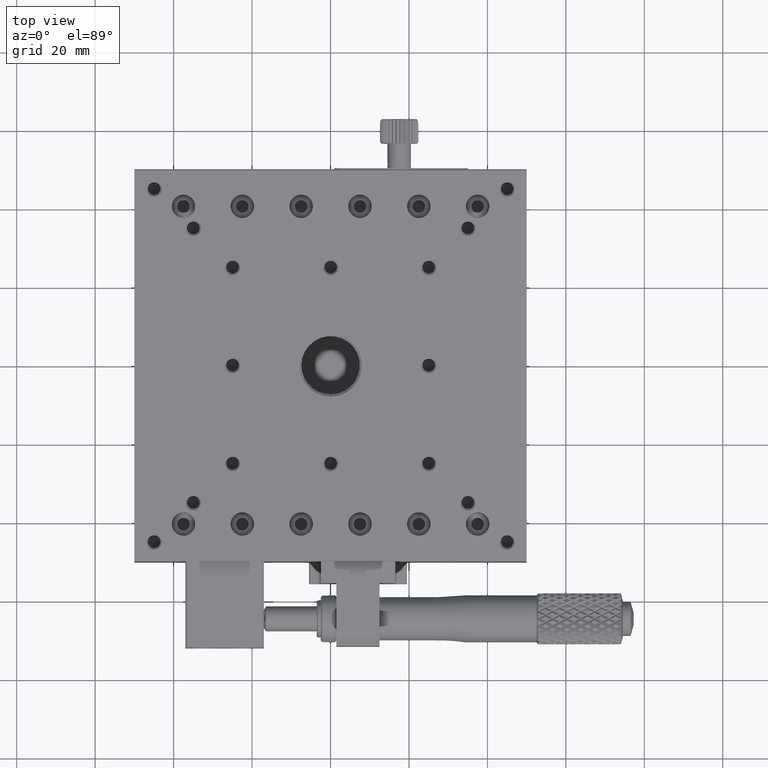
[diagram: clean part render]
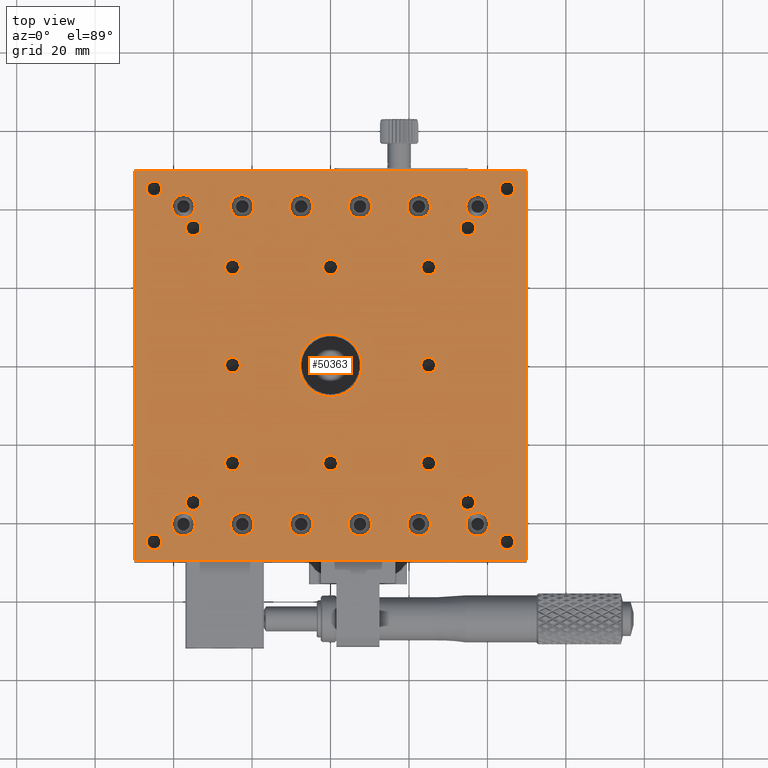
[diagram: same view with one face highlighted and labeled with its STEP entity id]
A machine part, top view. The second image highlights one B-rep face of the part: STEP entity #50363.
In plain terms, the highlighted planar face has unit normal (0, 0, 1).
Its self-contained STEP definition (entity closure, byte-faithful):
#138 = FACE_OUTER_BOUND ( 'NONE', #55230, .T. ) ;
#158 = ORIENTED_EDGE ( 'NONE', *, *, #47965, .T. ) ;
#298 = VERTEX_POINT ( 'NONE', #25252 ) ;
#645 = DIRECTION ( 'NONE',  ( 0.000000000000000000, 0.000000000000000000, -1.000000000000000000 ) ) ;
#951 = FACE_BOUND ( 'NONE', #22746, .T. ) ;
#1173 = DIRECTION ( 'NONE',  ( -1.000000000000000000, 0.000000000000000000, 0.000000000000000000 ) ) ;
#1351 = FACE_BOUND ( 'NONE', #33937, .T. ) ;
#1840 = EDGE_CURVE ( 'NONE', #40509, #40509, #58110, .T. ) ;
#2300 = CARTESIAN_POINT ( 'NONE',  ( 22.50000000000000355, 40.50000000000000000, 20.00000000000000000 ) ) ;
#2648 = CIRCLE ( 'NONE', #56085, 2.999999999999999112 ) ;
#3161 = VERTEX_POINT ( 'NONE', #47643 ) ;
#3465 = CARTESIAN_POINT ( 'NONE',  ( -47.00000000003683454, -45.00000000000000000, 20.00000000000000000 ) ) ;
#3509 = ORIENTED_EDGE ( 'NONE', *, *, #56589, .T. ) ;
#3549 = EDGE_CURVE ( 'NONE', #65436, #65436, #72535, .T. ) ;
#3638 = ORIENTED_EDGE ( 'NONE', *, *, #54955, .T. ) ;
#3855 = CARTESIAN_POINT ( 'NONE',  ( 4.500000000000000000, 40.50000000000000000, 20.00000000000000000 ) ) ;
#4041 = EDGE_LOOP ( 'NONE', ( #158 ) ) ;
#4313 = EDGE_LOOP ( 'NONE', ( #26048 ) ) ;
#4338 = VERTEX_POINT ( 'NONE', #78319 ) ;
#4940 = CIRCLE ( 'NONE', #67545, 2.000000000005004885 ) ;
#4987 = DIRECTION ( 'NONE',  ( -0.000000000000000000, -0.000000000000000000, -1.000000000000000000 ) ) ;
#6009 = DIRECTION ( 'NONE',  ( 0.000000000000000000, 0.000000000000000000, -1.000000000000000000 ) ) ;
#6127 = ORIENTED_EDGE ( 'NONE', *, *, #51556, .T. ) ;
#6254 = CIRCLE ( 'NONE', #8909, 2.000000000043654413 ) ;
#6442 = EDGE_CURVE ( 'NONE', #16455, #16455, #4940, .T. ) ;
#6642 = ORIENTED_EDGE ( 'NONE', *, *, #54458, .T. ) ;
#6644 = EDGE_CURVE ( 'NONE', #62362, #58034, #27372, .T. ) ;
#6684 = FACE_BOUND ( 'NONE', #21209, .T. ) ;
#7052 = EDGE_CURVE ( 'NONE', #39459, #40776, #19019, .T. ) ;
#7494 = FACE_BOUND ( 'NONE', #4313, .T. ) ;
#8128 = EDGE_CURVE ( 'NONE', #28692, #28692, #78809, .T. ) ;
#8168 = AXIS2_PLACEMENT_3D ( 'NONE', #55124, #29019, #61625 ) ;
#8376 = CARTESIAN_POINT ( 'NONE',  ( 40.50000000000000711, 40.50000000000000000, 20.00000000000000000 ) ) ;
#8476 = EDGE_CURVE ( 'NONE', #46278, #46278, #30465, .T. ) ;
#8482 = VERTEX_POINT ( 'NONE', #64413 ) ;
#8604 = DIRECTION ( 'NONE',  ( -1.000000000000000000, 0.000000000000000000, 0.000000000000000000 ) ) ;
#8799 = CIRCLE ( 'NONE', #29652, 2.000000000005004885 ) ;
#8909 = AXIS2_PLACEMENT_3D ( 'NONE', #67469, #56815, #42541 ) ;
#9109 = CARTESIAN_POINT ( 'NONE',  ( -40.50000000000000711, -40.49999999999999289, 20.00000000000000000 ) ) ;
#9531 = CARTESIAN_POINT ( 'NONE',  ( 0.000000000000000000, 0.000000000000000000, 20.00000000000000000 ) ) ;
#9783 = ORIENTED_EDGE ( 'NONE', *, *, #38152, .T. ) ;
#10974 = CIRCLE ( 'NONE', #52714, 2.000000000043654413 ) ;
#11170 = DIRECTION ( 'NONE',  ( -1.000000000000000000, 0.000000000000000000, 0.000000000000000000 ) ) ;
#11377 = ORIENTED_EDGE ( 'NONE', *, *, #7052, .T. ) ;
#11406 = CARTESIAN_POINT ( 'NONE',  ( -22.49999999999999289, -40.49999999999999289, 20.00000000000000000 ) ) ;
#11556 = ORIENTED_EDGE ( 'NONE', *, *, #23954, .T. ) ;
#12385 = AXIS2_PLACEMENT_3D ( 'NONE', #77914, #28476, #34983 ) ;
#12392 = DIRECTION ( 'NONE',  ( -1.000000000000000000, 0.000000000000000000, 0.000000000000000000 ) ) ;
#12677 = EDGE_LOOP ( 'NONE', ( #31024 ) ) ;
#12827 = EDGE_CURVE ( 'NONE', #36768, #36768, #25365, .T. ) ;
#12846 = FACE_BOUND ( 'NONE', #31286, .T. ) ;
#13250 = FACE_BOUND ( 'NONE', #64460, .T. ) ;
#13407 = EDGE_CURVE ( 'NONE', #30267, #30267, #65760, .T. ) ;
#13533 = CIRCLE ( 'NONE', #63066, 2.000000000036833647 ) ;
#13652 = CARTESIAN_POINT ( 'NONE',  ( -50.00000000000000000, 49.69999999999999574, 20.00000000000000000 ) ) ;
#14139 = VERTEX_POINT ( 'NONE', #69628 ) ;
#14177 = DIRECTION ( 'NONE',  ( -0.000000000000000000, 0.000000000000000000, -1.000000000000000000 ) ) ;
#14421 = EDGE_CURVE ( 'NONE', #80556, #80556, #43639, .T. ) ;
#14493 = ORIENTED_EDGE ( 'NONE', *, *, #71103, .T. ) ;
#14955 = AXIS2_PLACEMENT_3D ( 'NONE', #35201, #15679, #53612 ) ;
#15174 = VERTEX_POINT ( 'NONE', #27410 ) ;
#15558 = ORIENTED_EDGE ( 'NONE', *, *, #35464, .T. ) ;
#15679 = DIRECTION ( 'NONE',  ( -0.000000000000000000, -0.000000000000000000, -1.000000000000000000 ) ) ;
#16283 = EDGE_LOOP ( 'NONE', ( #3638 ) ) ;
#16455 = VERTEX_POINT ( 'NONE', #35197 ) ;
#16545 = DIRECTION ( 'NONE',  ( -1.000000000000000000, 0.000000000000000000, 0.000000000000000000 ) ) ;
#17102 = ORIENTED_EDGE ( 'NONE', *, *, #24367, .T. ) ;
#17367 = CARTESIAN_POINT ( 'NONE',  ( -50.00000000000000000, -49.70000000000000995, 20.00000000000000000 ) ) ;
#18404 = AXIS2_PLACEMENT_3D ( 'NONE', #23099, #43063, #54130 ) ;
#18976 = ORIENTED_EDGE ( 'NONE', *, *, #38147, .T. ) ;
#19019 = LINE ( 'NONE', #24748, #77622 ) ;
#19363 = FACE_BOUND ( 'NONE', #67192, .T. ) ;
#19515 = ORIENTED_EDGE ( 'NONE', *, *, #42082, .T. ) ;
#20171 = FACE_BOUND ( 'NONE', #41859, .T. ) ;
#20196 = ORIENTED_EDGE ( 'NONE', *, *, #47331, .T. ) ;
#20359 = AXIS2_PLACEMENT_3D ( 'NONE', #73948, #42882, #37551 ) ;
#20595 = DIRECTION ( 'NONE',  ( 0.000000000000000000, -1.000000000000000000, 0.000000000000000000 ) ) ;
#20757 = VERTEX_POINT ( 'NONE', #45246 ) ;
#20935 = DIRECTION ( 'NONE',  ( -0.000000000000000000, -0.000000000000000000, -1.000000000000000000 ) ) ;
#21054 = CIRCLE ( 'NONE', #26221, 8.000000000000000000 ) ;
#21069 = VERTEX_POINT ( 'NONE', #8376 ) ;
#21209 = EDGE_LOOP ( 'NONE', ( #25017 ) ) ;
#21277 = CARTESIAN_POINT ( 'NONE',  ( 25.00000000000000000, -24.99999999999999289, 20.00000000000000000 ) ) ;
#22053 = AXIS2_PLACEMENT_3D ( 'NONE', #29321, #28542, #66486 ) ;
#22159 = CIRCLE ( 'NONE', #78243, 2.000000000043654413 ) ;
#22270 = CARTESIAN_POINT ( 'NONE',  ( 22.99999999995634781, 25.00000000000000000, 20.00000000000000000 ) ) ;
#22274 = DIRECTION ( 'NONE',  ( -0.000000000000000000, -0.000000000000000000, -1.000000000000000000 ) ) ;
#22595 = DIRECTION ( 'NONE',  ( -1.000000000000000000, 0.000000000000000000, 0.000000000000000000 ) ) ;
#22645 = EDGE_LOOP ( 'NONE', ( #20196 ) ) ;
#22687 = ORIENTED_EDGE ( 'NONE', *, *, #6644, .T. ) ;
#22699 = LINE ( 'NONE', #17367, #74586 ) ;
#22706 = AXIS2_PLACEMENT_3D ( 'NONE', #38264, #26078, #63196 ) ;
#22746 = EDGE_LOOP ( 'NONE', ( #17102 ) ) ;
#22775 = EDGE_CURVE ( 'NONE', #53505, #53505, #2648, .T. ) ;
#23096 = DIRECTION ( 'NONE',  ( -1.000000000000000000, 0.000000000000000000, 0.000000000000000000 ) ) ;
#23099 = CARTESIAN_POINT ( 'NONE',  ( 35.00000000000000000, 35.00000000000000000, 20.00000000000000000 ) ) ;
#23570 = CIRCLE ( 'NONE', #18404, 2.000000000052751137 ) ;
#23721 = CARTESIAN_POINT ( 'NONE',  ( 7.500000000000000000, -40.49999999999999289, 20.00000000000000000 ) ) ;
#23954 = EDGE_CURVE ( 'NONE', #15174, #15174, #62201, .T. ) ;
#24246 = DIRECTION ( 'NONE',  ( -0.000000000000000000, -0.000000000000000000, -1.000000000000000000 ) ) ;
#24367 = EDGE_CURVE ( 'NONE', #28210, #28210, #77896, .T. ) ;
#24577 = CARTESIAN_POINT ( 'NONE',  ( -19.49999999999999289, 40.50000000000000000, 20.00000000000000000 ) ) ;
#24748 = CARTESIAN_POINT ( 'NONE',  ( -50.00000000000000000, 49.69999999999999574, 20.00000000000000000 ) ) ;
#24864 = DIRECTION ( 'NONE',  ( 1.000000000000000000, 0.000000000000000000, 0.000000000000000000 ) ) ;
#25017 = ORIENTED_EDGE ( 'NONE', *, *, #1840, .T. ) ;
#25082 = FACE_BOUND ( 'NONE', #60330, .T. ) ;
#25252 = CARTESIAN_POINT ( 'NONE',  ( -36.99999999993224264, -35.00000000000000000, 19.99999999994315658 ) ) ;
#25365 = CIRCLE ( 'NONE', #56665, 3.000000000000000000 ) ;
#25498 = FACE_BOUND ( 'NONE', #63060, .T. ) ;
#25634 = EDGE_LOOP ( 'NONE', ( #80806 ) ) ;
#25817 = EDGE_LOOP ( 'NONE', ( #15558 ) ) ;
#25906 = FACE_BOUND ( 'NONE', #42250, .T. ) ;
#25955 = AXIS2_PLACEMENT_3D ( 'NONE', #72106, #65984, #59441 ) ;
#26048 = ORIENTED_EDGE ( 'NONE', *, *, #67678, .T. ) ;
#26078 = DIRECTION ( 'NONE',  ( -0.000000000000000000, 0.000000000000000000, -1.000000000000000000 ) ) ;
#26080 = ORIENTED_EDGE ( 'NONE', *, *, #22775, .T. ) ;
#26221 = AXIS2_PLACEMENT_3D ( 'NONE', #9531, #65464, #20595 ) ;
#26236 = EDGE_LOOP ( 'NONE', ( #78989 ) ) ;
#26308 = FACE_BOUND ( 'NONE', #12677, .T. ) ;
#26468 = CARTESIAN_POINT ( 'NONE',  ( 42.99999999999499778, -45.00000000000000000, 19.99999999994315658 ) ) ;
#26708 = FACE_BOUND ( 'NONE', #25817, .T. ) ;
#27259 = DIRECTION ( 'NONE',  ( -1.000000000000000000, 0.000000000000000000, 0.000000000000000000 ) ) ;
#27372 = LINE ( 'NONE', #40366, #34977 ) ;
#27410 = CARTESIAN_POINT ( 'NONE',  ( 40.50000000000000711, -40.49999999999999289, 20.00000000000000000 ) ) ;
#27973 = AXIS2_PLACEMENT_3D ( 'NONE', #66705, #40982, #40182 ) ;
#28210 = VERTEX_POINT ( 'NONE', #65341 ) ;
#28476 = DIRECTION ( 'NONE',  ( 0.000000000000000000, 0.000000000000000000, -1.000000000000000000 ) ) ;
#28542 = DIRECTION ( 'NONE',  ( -0.000000000000000000, -0.000000000000000000, -1.000000000000000000 ) ) ;
#28692 = VERTEX_POINT ( 'NONE', #53608 ) ;
#29019 = DIRECTION ( 'NONE',  ( 0.000000000000000000, 0.000000000000000000, -1.000000000000000000 ) ) ;
#29321 = CARTESIAN_POINT ( 'NONE',  ( -35.00000000000000000, 35.00000000000000000, 19.99999999994315658 ) ) ;
#29418 = EDGE_LOOP ( 'NONE', ( #30115 ) ) ;
#29652 = AXIS2_PLACEMENT_3D ( 'NONE', #61367, #68711, #30337 ) ;
#30115 = ORIENTED_EDGE ( 'NONE', *, *, #13407, .T. ) ;
#30123 = EDGE_LOOP ( 'NONE', ( #3509 ) ) ;
#30267 = VERTEX_POINT ( 'NONE', #73579 ) ;
#30337 = DIRECTION ( 'NONE',  ( -1.000000000000000000, 0.000000000000000000, 0.000000000000000000 ) ) ;
#30465 = CIRCLE ( 'NONE', #50078, 3.000000000000002665 ) ;
#30766 = DIRECTION ( 'NONE',  ( -1.000000000000000000, 0.000000000000000000, 0.000000000000000000 ) ) ;
#31024 = ORIENTED_EDGE ( 'NONE', *, *, #64486, .T. ) ;
#31286 = EDGE_LOOP ( 'NONE', ( #52075 ) ) ;
#32621 = CARTESIAN_POINT ( 'NONE',  ( -45.00000000000000000, 45.00000000000000711, 20.00000000000000000 ) ) ;
#32722 = CIRCLE ( 'NONE', #74477, 1.999999999941340256 ) ;
#32914 = DIRECTION ( 'NONE',  ( 1.000000000000000000, 0.000000000000000000, 0.000000000000000000 ) ) ;
#32998 = CIRCLE ( 'NONE', #78700, 3.000000000000002665 ) ;
#33698 = VERTEX_POINT ( 'NONE', #57382 ) ;
#33937 = EDGE_LOOP ( 'NONE', ( #19515 ) ) ;
#34395 = CIRCLE ( 'NONE', #22706, 3.000000000000000000 ) ;
#34977 = VECTOR ( 'NONE', #47318, 1000.000000000000000 ) ;
#34983 = DIRECTION ( 'NONE',  ( 1.000000000000000000, 0.000000000000000000, 0.000000000000000000 ) ) ;
#35197 = CARTESIAN_POINT ( 'NONE',  ( 42.99999999999499778, 45.00000000000000711, 19.99999999994315658 ) ) ;
#35201 = CARTESIAN_POINT ( 'NONE',  ( 0.000000000000000000, 25.00000000000000000, 20.00000000000000000 ) ) ;
#35239 = ORIENTED_EDGE ( 'NONE', *, *, #42600, .T. ) ;
#35464 = EDGE_CURVE ( 'NONE', #298, #298, #67426, .T. ) ;
#35653 = DIRECTION ( 'NONE',  ( -0.000000000000000000, 0.000000000000000000, -1.000000000000000000 ) ) ;
#35679 = VERTEX_POINT ( 'NONE', #22270 ) ;
#36028 = ORIENTED_EDGE ( 'NONE', *, *, #58950, .T. ) ;
#36105 = DIRECTION ( 'NONE',  ( -1.000000000000000000, 0.000000000000000000, 0.000000000000000000 ) ) ;
#36768 = VERTEX_POINT ( 'NONE', #48671 ) ;
#36827 = AXIS2_PLACEMENT_3D ( 'NONE', #47988, #41435, #23096 ) ;
#37364 = VERTEX_POINT ( 'NONE', #56981 ) ;
#37551 = DIRECTION ( 'NONE',  ( -1.000000000000000000, 0.000000000000000000, 0.000000000000000000 ) ) ;
#37683 = CARTESIAN_POINT ( 'NONE',  ( 50.00000000000000000, -49.69999999999999574, 20.00000000000000355 ) ) ;
#38147 = EDGE_CURVE ( 'NONE', #39487, #39487, #8799, .T. ) ;
#38152 = EDGE_CURVE ( 'NONE', #38674, #38674, #78021, .T. ) ;
#38231 = DIRECTION ( 'NONE',  ( 1.000000000000000000, 0.000000000000000000, 0.000000000000000000 ) ) ;
#38264 = CARTESIAN_POINT ( 'NONE',  ( 7.500000000000000000, 40.50000000000000000, 20.00000000000000000 ) ) ;
#38674 = VERTEX_POINT ( 'NONE', #70544 ) ;
#38784 = DIRECTION ( 'NONE',  ( 1.000000000000000000, 0.000000000000000000, 0.000000000000000000 ) ) ;
#39459 = VERTEX_POINT ( 'NONE', #69792 ) ;
#39487 = VERTEX_POINT ( 'NONE', #26468 ) ;
#39872 = EDGE_LOOP ( 'NONE', ( #9783 ) ) ;
#40114 = CARTESIAN_POINT ( 'NONE',  ( -2.000000000020915714, -24.99999999999999289, 20.00000000000000000 ) ) ;
#40182 = DIRECTION ( 'NONE',  ( -1.000000000000000000, 0.000000000000000000, 0.000000000000000000 ) ) ;
#40366 = CARTESIAN_POINT ( 'NONE',  ( 50.00000000000000000, 49.69999999999999574, 20.00000000000000000 ) ) ;
#40509 = VERTEX_POINT ( 'NONE', #70761 ) ;
#40551 = ORIENTED_EDGE ( 'NONE', *, *, #12827, .T. ) ;
#40605 = EDGE_CURVE ( 'NONE', #63598, #63598, #6254, .T. ) ;
#40776 = VERTEX_POINT ( 'NONE', #77656 ) ;
#40982 = DIRECTION ( 'NONE',  ( -0.000000000000000000, -0.000000000000000000, -1.000000000000000000 ) ) ;
#41286 = ORIENTED_EDGE ( 'NONE', *, *, #74149, .T. ) ;
#41435 = DIRECTION ( 'NONE',  ( -0.000000000000000000, 0.000000000000000000, -1.000000000000000000 ) ) ;
#41859 = EDGE_LOOP ( 'NONE', ( #43777 ) ) ;
#42082 = EDGE_CURVE ( 'NONE', #8482, #8482, #79417, .T. ) ;
#42250 = EDGE_LOOP ( 'NONE', ( #11556 ) ) ;
#42541 = DIRECTION ( 'NONE',  ( -1.000000000000000000, 0.000000000000000000, 0.000000000000000000 ) ) ;
#42600 = EDGE_CURVE ( 'NONE', #20757, #20757, #44139, .T. ) ;
#42619 = AXIS2_PLACEMENT_3D ( 'NONE', #71649, #35653, #11170 ) ;
#42882 = DIRECTION ( 'NONE',  ( -0.000000000000000000, -0.000000000000000000, -1.000000000000000000 ) ) ;
#43050 = DIRECTION ( 'NONE',  ( -0.000000000000000000, -0.000000000000000000, -1.000000000000000000 ) ) ;
#43063 = DIRECTION ( 'NONE',  ( -0.000000000000000000, -0.000000000000000000, -1.000000000000000000 ) ) ;
#43486 = EDGE_LOOP ( 'NONE', ( #6642 ) ) ;
#43639 = CIRCLE ( 'NONE', #12385, 2.999999999999999112 ) ;
#43777 = ORIENTED_EDGE ( 'NONE', *, *, #6442, .T. ) ;
#43839 = FACE_BOUND ( 'NONE', #78686, .T. ) ;
#44139 = CIRCLE ( 'NONE', #22053, 1.999999999932236427 ) ;
#44249 = FACE_BOUND ( 'NONE', #4041, .T. ) ;
#44941 = DIRECTION ( 'NONE',  ( 0.000000000000000000, 0.000000000000000000, -1.000000000000000000 ) ) ;
#45008 = EDGE_CURVE ( 'NONE', #47245, #47245, #22159, .T. ) ;
#45246 = CARTESIAN_POINT ( 'NONE',  ( -36.99999999993224264, 35.00000000000000000, 19.99999999994315658 ) ) ;
#45342 = AXIS2_PLACEMENT_3D ( 'NONE', #80218, #24246, #12392 ) ;
#45365 = DIRECTION ( 'NONE',  ( -0.000000000000000000, -0.000000000000000000, -1.000000000000000000 ) ) ;
#45621 = CARTESIAN_POINT ( 'NONE',  ( -37.50000000000000711, -40.49999999999999289, 20.00000000000000000 ) ) ;
#45819 = ORIENTED_EDGE ( 'NONE', *, *, #8476, .T. ) ;
#46037 = CIRCLE ( 'NONE', #51196, 2.999999999999999112 ) ;
#46278 = VERTEX_POINT ( 'NONE', #9109 ) ;
#47084 = DIRECTION ( 'NONE',  ( -1.000000000000000000, -0.000000000000000000, 0.000000000000000000 ) ) ;
#47245 = VERTEX_POINT ( 'NONE', #78713 ) ;
#47318 = DIRECTION ( 'NONE',  ( -0.000000000000000000, 1.000000000000000000, -0.000000000000000000 ) ) ;
#47331 = EDGE_CURVE ( 'NONE', #59490, #59490, #21054, .T. ) ;
#47432 = EDGE_CURVE ( 'NONE', #3161, #3161, #32722, .T. ) ;
#47643 = CARTESIAN_POINT ( 'NONE',  ( -26.99999999994133404, 0.000000000000000000, 19.99999999994315658 ) ) ;
#47881 = CARTESIAN_POINT ( 'NONE',  ( -24.99999999999999289, 0.000000000000000000, 19.99999999994315658 ) ) ;
#47965 = EDGE_CURVE ( 'NONE', #4338, #4338, #23570, .T. ) ;
#47988 = CARTESIAN_POINT ( 'NONE',  ( -37.50000000000000711, 40.50000000000000000, 20.00000000000000000 ) ) ;
#48446 = CARTESIAN_POINT ( 'NONE',  ( 0.000000000000000000, -8.000000000000000000, 20.00000000000000000 ) ) ;
#48563 = DIRECTION ( 'NONE',  ( 0.000000000000000000, 0.000000000000000000, -1.000000000000000000 ) ) ;
#48625 = DIRECTION ( 'NONE',  ( -1.000000000000000000, 0.000000000000000000, 0.000000000000000000 ) ) ;
#48671 = CARTESIAN_POINT ( 'NONE',  ( 4.500000000000000000, -40.49999999999999289, 20.00000000000000000 ) ) ;
#49982 = FACE_BOUND ( 'NONE', #73096, .T. ) ;
#50078 = AXIS2_PLACEMENT_3D ( 'NONE', #45621, #70506, #27259 ) ;
#50363 = ADVANCED_FACE ( 'NONE', ( #138, #20171, #7494, #56495, #75313, #44249, #26708, #69555, #76541, #64232, #25082, #76126, #49982, #74913, #56908, #43839, #1351, #69148, #68750, #19363, #26308, #51194, #12846, #62625, #6684, #25498, #13250, #63026, #951, #25906 ), #50783, .T. ) ;
#50783 = PLANE ( 'NONE',  #54935 ) ;
#51194 = FACE_BOUND ( 'NONE', #16283, .T. ) ;
#51196 = AXIS2_PLACEMENT_3D ( 'NONE', #11406, #48563, #24864 ) ;
#51556 = EDGE_CURVE ( 'NONE', #40776, #62362, #22699, .T. ) ;
#52075 = ORIENTED_EDGE ( 'NONE', *, *, #14421, .T. ) ;
#52346 = DIRECTION ( 'NONE',  ( -1.000000000000000000, 0.000000000000000000, 0.000000000000000000 ) ) ;
#52378 = LINE ( 'NONE', #70752, #65925 ) ;
#52714 = AXIS2_PLACEMENT_3D ( 'NONE', #78233, #22274, #16545 ) ;
#52804 = DIRECTION ( 'NONE',  ( 0.000000000000000000, 0.000000000000000000, 1.000000000000000000 ) ) ;
#53505 = VERTEX_POINT ( 'NONE', #78442 ) ;
#53608 = CARTESIAN_POINT ( 'NONE',  ( -47.00000000003683454, 45.00000000000000711, 20.00000000000000000 ) ) ;
#53612 = DIRECTION ( 'NONE',  ( -1.000000000000000000, 0.000000000000000000, 0.000000000000000000 ) ) ;
#53942 = EDGE_LOOP ( 'NONE', ( #35239 ) ) ;
#54130 = DIRECTION ( 'NONE',  ( -1.000000000000000000, 0.000000000000000000, 0.000000000000000000 ) ) ;
#54458 = EDGE_CURVE ( 'NONE', #37364, #37364, #59071, .T. ) ;
#54935 = AXIS2_PLACEMENT_3D ( 'NONE', #13652, #52804, #47084 ) ;
#54955 = EDGE_CURVE ( 'NONE', #33698, #33698, #72072, .T. ) ;
#55124 = CARTESIAN_POINT ( 'NONE',  ( -7.500000000000000000, 40.50000000000000000, 20.00000000000000000 ) ) ;
#55230 = EDGE_LOOP ( 'NONE', ( #11377, #6127, #22687, #41286 ) ) ;
#55363 = CIRCLE ( 'NONE', #14955, 2.000000000020915714 ) ;
#56085 = AXIS2_PLACEMENT_3D ( 'NONE', #2300, #14177, #63948 ) ;
#56495 = FACE_BOUND ( 'NONE', #62458, .T. ) ;
#56589 = EDGE_CURVE ( 'NONE', #21069, #21069, #32998, .T. ) ;
#56604 = CARTESIAN_POINT ( 'NONE',  ( -7.500000000000000000, -40.49999999999999289, 20.00000000000000000 ) ) ;
#56665 = AXIS2_PLACEMENT_3D ( 'NONE', #23721, #74344, #48625 ) ;
#56815 = DIRECTION ( 'NONE',  ( -0.000000000000000000, -0.000000000000000000, -1.000000000000000000 ) ) ;
#56908 = FACE_BOUND ( 'NONE', #57369, .T. ) ;
#56981 = CARTESIAN_POINT ( 'NONE',  ( -4.500000000000000000, 40.50000000000000000, 20.00000000000000000 ) ) ;
#57369 = EDGE_LOOP ( 'NONE', ( #14493 ) ) ;
#57382 = CARTESIAN_POINT ( 'NONE',  ( -40.50000000000000711, 40.50000000000000000, 20.00000000000000000 ) ) ;
#57656 = EDGE_LOOP ( 'NONE', ( #40551 ) ) ;
#57872 = CARTESIAN_POINT ( 'NONE',  ( 22.99999999995634781, 0.000000000000000000, 20.00000000000000000 ) ) ;
#58034 = VERTEX_POINT ( 'NONE', #77305 ) ;
#58110 = CIRCLE ( 'NONE', #78979, 3.000000000000000000 ) ;
#58788 = CARTESIAN_POINT ( 'NONE',  ( 37.50000000000000711, 40.50000000000000000, 20.00000000000000000 ) ) ;
#58950 = EDGE_CURVE ( 'NONE', #14139, #14139, #46037, .T. ) ;
#59071 = CIRCLE ( 'NONE', #8168, 3.000000000000000000 ) ;
#59441 = DIRECTION ( 'NONE',  ( -1.000000000000000000, 0.000000000000000000, 0.000000000000000000 ) ) ;
#59490 = VERTEX_POINT ( 'NONE', #48446 ) ;
#60330 = EDGE_LOOP ( 'NONE', ( #68586 ) ) ;
#61367 = CARTESIAN_POINT ( 'NONE',  ( 45.00000000000000711, -45.00000000000000000, 19.99999999994315658 ) ) ;
#61381 = CARTESIAN_POINT ( 'NONE',  ( -2.000000000020915714, 25.00000000000000000, 20.00000000000000000 ) ) ;
#61625 = DIRECTION ( 'NONE',  ( 1.000000000000000000, 0.000000000000000000, 0.000000000000000000 ) ) ;
#62201 = CIRCLE ( 'NONE', #76615, 3.000000000000002665 ) ;
#62362 = VERTEX_POINT ( 'NONE', #37683 ) ;
#62458 = EDGE_LOOP ( 'NONE', ( #75801 ) ) ;
#62625 = FACE_BOUND ( 'NONE', #43486, .T. ) ;
#63026 = FACE_BOUND ( 'NONE', #57656, .T. ) ;
#63060 = EDGE_LOOP ( 'NONE', ( #36028 ) ) ;
#63066 = AXIS2_PLACEMENT_3D ( 'NONE', #67131, #79030, #30766 ) ;
#63196 = DIRECTION ( 'NONE',  ( -1.000000000000000000, 0.000000000000000000, 0.000000000000000000 ) ) ;
#63374 = CARTESIAN_POINT ( 'NONE',  ( 45.00000000000000711, 45.00000000000000711, 19.99999999994315658 ) ) ;
#63598 = VERTEX_POINT ( 'NONE', #57872 ) ;
#63948 = DIRECTION ( 'NONE',  ( -1.000000000000000000, 0.000000000000000000, 0.000000000000000000 ) ) ;
#64232 = FACE_BOUND ( 'NONE', #25634, .T. ) ;
#64413 = CARTESIAN_POINT ( 'NONE',  ( -26.99999999994133404, 25.00000000000000000, 19.99999999994315658 ) ) ;
#64420 = AXIS2_PLACEMENT_3D ( 'NONE', #32621, #69367, #1173 ) ;
#64460 = EDGE_LOOP ( 'NONE', ( #45819 ) ) ;
#64486 = EDGE_CURVE ( 'NONE', #79426, #79426, #34395, .T. ) ;
#64748 = EDGE_CURVE ( 'NONE', #35679, #35679, #10974, .T. ) ;
#65341 = CARTESIAN_POINT ( 'NONE',  ( 19.50000000000000355, -40.49999999999999289, 20.00000000000000000 ) ) ;
#65436 = VERTEX_POINT ( 'NONE', #40114 ) ;
#65464 = DIRECTION ( 'NONE',  ( -0.000000000000000000, 3.009265538105056020E-33, -1.000000000000000000 ) ) ;
#65574 = DIRECTION ( 'NONE',  ( 1.000000000000000000, 0.000000000000000000, -0.000000000000000000 ) ) ;
#65760 = CIRCLE ( 'NONE', #27973, 1.999999999941340256 ) ;
#65925 = VECTOR ( 'NONE', #71166, 1000.000000000000000 ) ;
#65984 = DIRECTION ( 'NONE',  ( -0.000000000000000000, -0.000000000000000000, -1.000000000000000000 ) ) ;
#66486 = DIRECTION ( 'NONE',  ( -1.000000000000000000, 0.000000000000000000, 0.000000000000000000 ) ) ;
#66705 = CARTESIAN_POINT ( 'NONE',  ( -24.99999999999999289, -24.99999999999999289, 19.99999999994315658 ) ) ;
#67131 = CARTESIAN_POINT ( 'NONE',  ( -45.00000000000000000, -45.00000000000000000, 20.00000000000000000 ) ) ;
#67192 = EDGE_LOOP ( 'NONE', ( #26080 ) ) ;
#67426 = CIRCLE ( 'NONE', #80454, 1.999999999932236427 ) ;
#67469 = CARTESIAN_POINT ( 'NONE',  ( 25.00000000000000000, 0.000000000000000000, 20.00000000000000000 ) ) ;
#67545 = AXIS2_PLACEMENT_3D ( 'NONE', #63374, #20935, #52346 ) ;
#67678 = EDGE_CURVE ( 'NONE', #79026, #79026, #13533, .T. ) ;
#68586 = ORIENTED_EDGE ( 'NONE', *, *, #40605, .T. ) ;
#68711 = DIRECTION ( 'NONE',  ( -0.000000000000000000, -0.000000000000000000, -1.000000000000000000 ) ) ;
#68750 = FACE_BOUND ( 'NONE', #30123, .T. ) ;
#68805 = DIRECTION ( 'NONE',  ( 0.000000000000000000, -1.000000000000000000, 0.000000000000000000 ) ) ;
#69148 = FACE_BOUND ( 'NONE', #22645, .T. ) ;
#69281 = CARTESIAN_POINT ( 'NONE',  ( 37.50000000000000711, -40.49999999999999289, 20.00000000000000000 ) ) ;
#69367 = DIRECTION ( 'NONE',  ( -0.000000000000000000, -0.000000000000000000, -1.000000000000000000 ) ) ;
#69555 = FACE_BOUND ( 'NONE', #53942, .T. ) ;
#69628 = CARTESIAN_POINT ( 'NONE',  ( -19.49999999999999289, -40.49999999999999289, 20.00000000000000000 ) ) ;
#69792 = CARTESIAN_POINT ( 'NONE',  ( -50.00000000000000000, 49.69999999999999574, 20.00000000000000000 ) ) ;
#70506 = DIRECTION ( 'NONE',  ( -0.000000000000000000, 0.000000000000000000, -1.000000000000000000 ) ) ;
#70544 = CARTESIAN_POINT ( 'NONE',  ( 32.99999999994724931, -35.00000000000000000, 20.00000000000000000 ) ) ;
#70752 = CARTESIAN_POINT ( 'NONE',  ( -50.00000000000000000, 49.69999999999999574, 20.00000000000000000 ) ) ;
#70761 = CARTESIAN_POINT ( 'NONE',  ( -4.500000000000000000, -40.49999999999999289, 20.00000000000000000 ) ) ;
#71103 = EDGE_CURVE ( 'NONE', #74091, #74091, #55363, .T. ) ;
#71166 = DIRECTION ( 'NONE',  ( -1.000000000000000000, -0.000000000000000000, 0.000000000000000000 ) ) ;
#71649 = CARTESIAN_POINT ( 'NONE',  ( 22.50000000000000355, -40.49999999999999289, 20.00000000000000000 ) ) ;
#72072 = CIRCLE ( 'NONE', #36827, 3.000000000000002665 ) ;
#72106 = CARTESIAN_POINT ( 'NONE',  ( -24.99999999999999289, 25.00000000000000000, 19.99999999994315658 ) ) ;
#72241 = ORIENTED_EDGE ( 'NONE', *, *, #3549, .T. ) ;
#72535 = CIRCLE ( 'NONE', #20359, 2.000000000020915714 ) ;
#73096 = EDGE_LOOP ( 'NONE', ( #77811 ) ) ;
#73579 = CARTESIAN_POINT ( 'NONE',  ( -26.99999999994133404, -24.99999999999999289, 19.99999999994315658 ) ) ;
#73948 = CARTESIAN_POINT ( 'NONE',  ( 0.000000000000000000, -24.99999999999999289, 20.00000000000000000 ) ) ;
#74091 = VERTEX_POINT ( 'NONE', #61381 ) ;
#74149 = EDGE_CURVE ( 'NONE', #58034, #39459, #52378, .T. ) ;
#74344 = DIRECTION ( 'NONE',  ( -0.000000000000000000, 0.000000000000000000, -1.000000000000000000 ) ) ;
#74477 = AXIS2_PLACEMENT_3D ( 'NONE', #47881, #4987, #22595 ) ;
#74586 = VECTOR ( 'NONE', #65574, 1000.000000000000000 ) ;
#74913 = FACE_BOUND ( 'NONE', #26236, .T. ) ;
#75313 = FACE_BOUND ( 'NONE', #75849, .T. ) ;
#75801 = ORIENTED_EDGE ( 'NONE', *, *, #8128, .T. ) ;
#75849 = EDGE_LOOP ( 'NONE', ( #18976 ) ) ;
#76126 = FACE_BOUND ( 'NONE', #29418, .T. ) ;
#76541 = FACE_BOUND ( 'NONE', #39872, .T. ) ;
#76615 = AXIS2_PLACEMENT_3D ( 'NONE', #69281, #6009, #38231 ) ;
#77305 = CARTESIAN_POINT ( 'NONE',  ( 50.00000000000002132, 49.69999999999999574, 20.00000000000000000 ) ) ;
#77622 = VECTOR ( 'NONE', #68805, 1000.000000000000000 ) ;
#77656 = CARTESIAN_POINT ( 'NONE',  ( -50.00000000000000000, -49.69999999999999574, 20.00000000000000355 ) ) ;
#77811 = ORIENTED_EDGE ( 'NONE', *, *, #47432, .T. ) ;
#77896 = CIRCLE ( 'NONE', #42619, 2.999999999999999112 ) ;
#77914 = CARTESIAN_POINT ( 'NONE',  ( -22.49999999999999289, 40.50000000000000000, 20.00000000000000000 ) ) ;
#78021 = CIRCLE ( 'NONE', #45342, 2.000000000052751137 ) ;
#78233 = CARTESIAN_POINT ( 'NONE',  ( 25.00000000000000000, 25.00000000000000000, 20.00000000000000000 ) ) ;
#78243 = AXIS2_PLACEMENT_3D ( 'NONE', #21277, #45365, #8604 ) ;
#78319 = CARTESIAN_POINT ( 'NONE',  ( 32.99999999994724931, 35.00000000000000000, 20.00000000000000000 ) ) ;
#78442 = CARTESIAN_POINT ( 'NONE',  ( 19.50000000000000355, 40.50000000000000000, 20.00000000000000000 ) ) ;
#78686 = EDGE_LOOP ( 'NONE', ( #72241 ) ) ;
#78700 = AXIS2_PLACEMENT_3D ( 'NONE', #58788, #44941, #38784 ) ;
#78713 = CARTESIAN_POINT ( 'NONE',  ( 22.99999999995634781, -24.99999999999999289, 20.00000000000000000 ) ) ;
#78809 = CIRCLE ( 'NONE', #64420, 2.000000000036833647 ) ;
#78979 = AXIS2_PLACEMENT_3D ( 'NONE', #56604, #645, #32914 ) ;
#78989 = ORIENTED_EDGE ( 'NONE', *, *, #45008, .T. ) ;
#79026 = VERTEX_POINT ( 'NONE', #3465 ) ;
#79030 = DIRECTION ( 'NONE',  ( -0.000000000000000000, -0.000000000000000000, -1.000000000000000000 ) ) ;
#79417 = CIRCLE ( 'NONE', #25955, 1.999999999941340256 ) ;
#79426 = VERTEX_POINT ( 'NONE', #3855 ) ;
#80218 = CARTESIAN_POINT ( 'NONE',  ( 35.00000000000000000, -35.00000000000000000, 20.00000000000000000 ) ) ;
#80261 = CARTESIAN_POINT ( 'NONE',  ( -35.00000000000000000, -35.00000000000000000, 19.99999999994315658 ) ) ;
#80454 = AXIS2_PLACEMENT_3D ( 'NONE', #80261, #43050, #36105 ) ;
#80556 = VERTEX_POINT ( 'NONE', #24577 ) ;
#80806 = ORIENTED_EDGE ( 'NONE', *, *, #64748, .T. ) ;